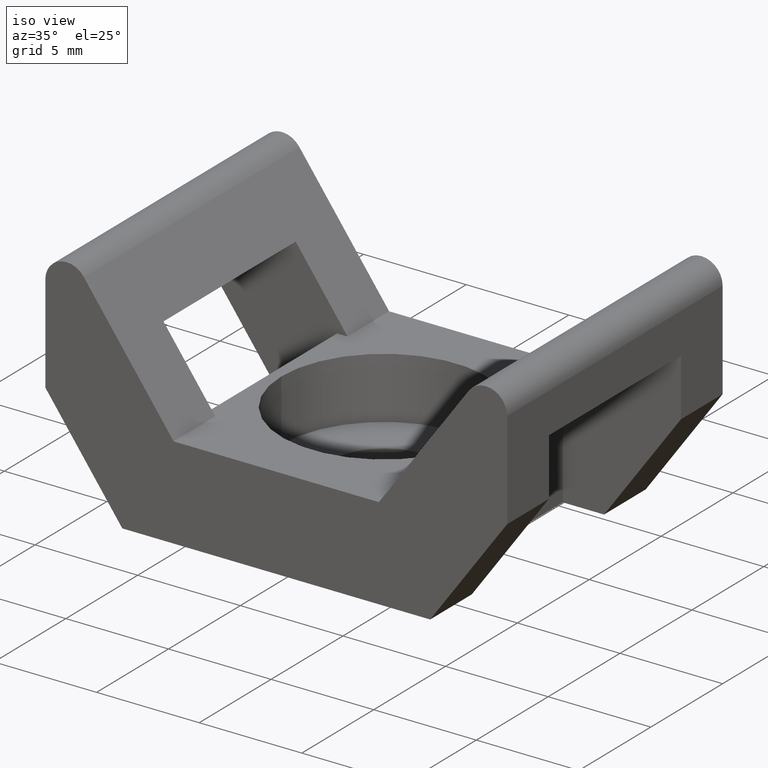
[diagram: clean part render]
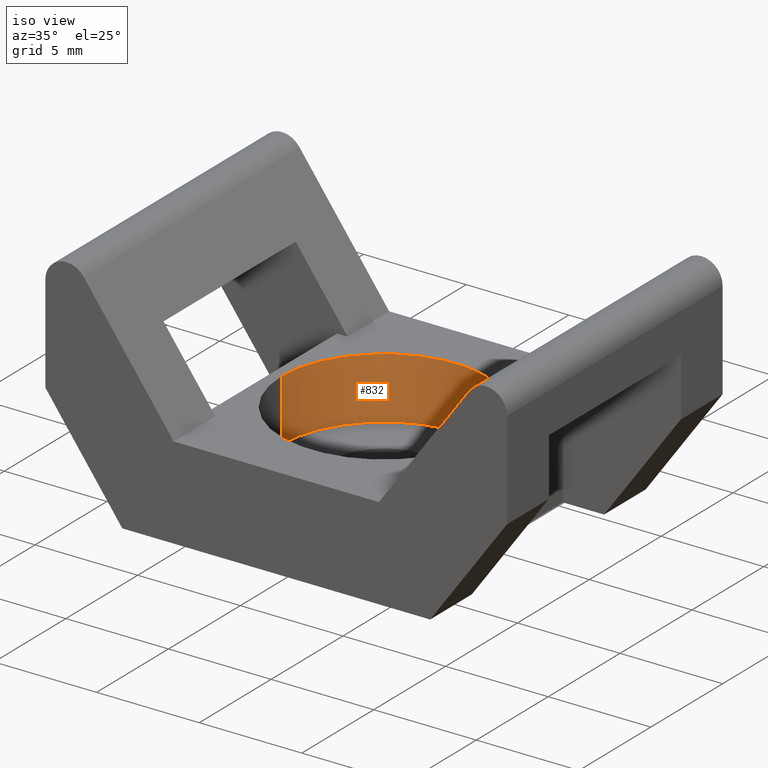
[diagram: same view with one face highlighted and labeled with its STEP entity id]
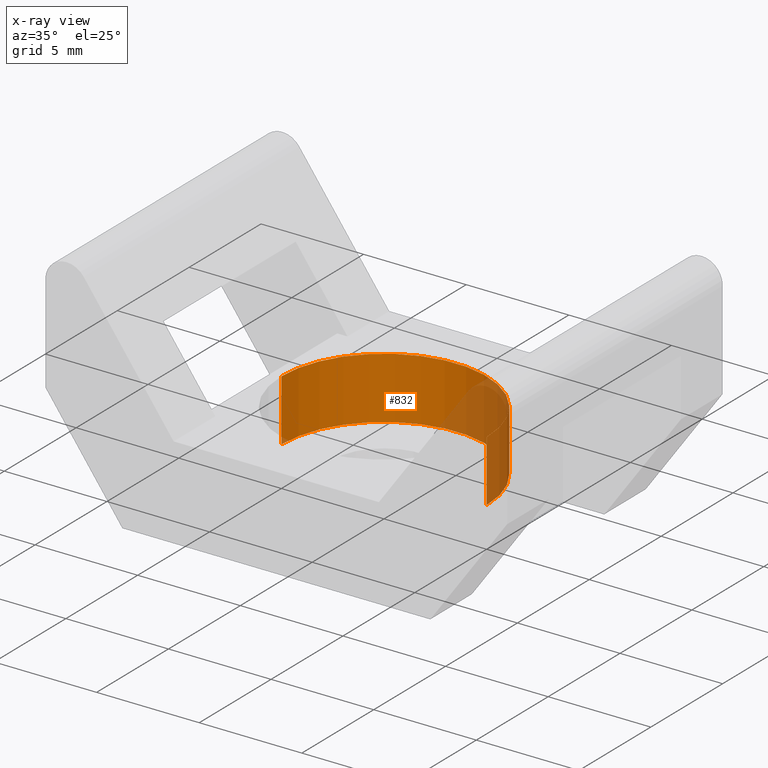
[diagram: x-ray of the same camera — body ghosted, the highlighted face saturated]
A machine part, iso view. The second image highlights one B-rep face of the part: STEP entity #832.
The next image is the same camera in x-ray: the body ghosted, the highlighted face saturated — about 25% of this face is hidden behind the body in this view.
In plain terms, the highlighted cylindrical surface (partial cylindrical patch) has radius 5 mm, axis along (0, 0, 1).
Its self-contained STEP definition (entity closure, byte-faithful):
#1 = CARTESIAN_POINT ( 'NONE',  ( -5.000000000000000000, 6.123233995736766300E-016, 1.500000000000000000 ) ) ;
#36 = DIRECTION ( 'NONE',  ( 1.000000000000000000, 0.0000000000000000000, 0.0000000000000000000 ) ) ;
#85 = DIRECTION ( 'NONE',  ( 0.0000000000000000000, 0.0000000000000000000, 1.000000000000000000 ) ) ;
#113 = DIRECTION ( 'NONE',  ( 0.0000000000000000000, 0.0000000000000000000, 1.000000000000000000 ) ) ;
#170 = VECTOR ( 'NONE', #589, 1000.000000000000000 ) ;
#178 = AXIS2_PLACEMENT_3D ( 'NONE', #607, #352, #36 ) ;
#237 = CIRCLE ( 'NONE', #178, 5.000000000000000000 ) ;
#330 = EDGE_CURVE ( 'NONE', #810, #429, #693, .T. ) ;
#337 = FACE_OUTER_BOUND ( 'NONE', #824, .T. ) ;
#352 = DIRECTION ( 'NONE',  ( -0.0000000000000000000, -0.0000000000000000000, -1.000000000000000000 ) ) ;
#365 = CARTESIAN_POINT ( 'NONE',  ( 5.000000000000000000, 0.0000000000000000000, 4.500000000000000900 ) ) ;
#369 = CARTESIAN_POINT ( 'NONE',  ( -5.000000000000000000, 6.123233995736766300E-016, 4.500000000000000900 ) ) ;
#383 = LINE ( 'NONE', #613, #602 ) ;
#419 = CARTESIAN_POINT ( 'NONE',  ( 5.000000000000000000, 0.0000000000000000000, 1.500000000000000000 ) ) ;
#425 = CARTESIAN_POINT ( 'NONE',  ( 5.000000000000000000, 0.0000000000000000000, 3.000000000000000000 ) ) ;
#427 = EDGE_CURVE ( 'NONE', #531, #429, #237, .T. ) ;
#429 = VERTEX_POINT ( 'NONE', #365 ) ;
#434 = VERTEX_POINT ( 'NONE', #1 ) ;
#456 = EDGE_CURVE ( 'NONE', #810, #434, #762, .T. ) ;
#531 = VERTEX_POINT ( 'NONE', #369 ) ;
#589 = DIRECTION ( 'NONE',  ( 0.0000000000000000000, 0.0000000000000000000, 1.000000000000000000 ) ) ;
#602 = VECTOR ( 'NONE', #113, 1000.000000000000000 ) ;
#605 = CARTESIAN_POINT ( 'NONE',  ( 0.0000000000000000000, 0.0000000000000000000, 3.000000000000000000 ) ) ;
#607 = CARTESIAN_POINT ( 'NONE',  ( 0.0000000000000000000, 0.0000000000000000000, 4.500000000000000900 ) ) ;
#608 = AXIS2_PLACEMENT_3D ( 'NONE', #605, #85, #673 ) ;
#613 = CARTESIAN_POINT ( 'NONE',  ( -5.000000000000000000, 6.123233995736766300E-016, 3.000000000000000000 ) ) ;
#639 = ORIENTED_EDGE ( 'NONE', *, *, #456, .F. ) ;
#673 = DIRECTION ( 'NONE',  ( 1.000000000000000000, 0.0000000000000000000, 0.0000000000000000000 ) ) ;
#690 = DIRECTION ( 'NONE',  ( 1.000000000000000000, 0.0000000000000000000, 0.0000000000000000000 ) ) ;
#693 = LINE ( 'NONE', #425, #170 ) ;
#762 = CIRCLE ( 'NONE', #973, 5.000000000000000000 ) ;
#763 = ORIENTED_EDGE ( 'NONE', *, *, #330, .T. ) ;
#810 = VERTEX_POINT ( 'NONE', #419 ) ;
#824 = EDGE_LOOP ( 'NONE', ( #904, #639, #763, #947 ) ) ;
#832 = ADVANCED_FACE ( 'NONE', ( #337 ), #956, .F. ) ;
#865 = DIRECTION ( 'NONE',  ( 0.0000000000000000000, 0.0000000000000000000, 1.000000000000000000 ) ) ;
#904 = ORIENTED_EDGE ( 'NONE', *, *, #1049, .F. ) ;
#942 = CARTESIAN_POINT ( 'NONE',  ( 0.0000000000000000000, 0.0000000000000000000, 1.500000000000000000 ) ) ;
#947 = ORIENTED_EDGE ( 'NONE', *, *, #427, .F. ) ;
#956 = CYLINDRICAL_SURFACE ( 'NONE', #608, 5.000000000000000000 ) ;
#973 = AXIS2_PLACEMENT_3D ( 'NONE', #942, #865, #690 ) ;
#1049 = EDGE_CURVE ( 'NONE', #434, #531, #383, .T. ) ;